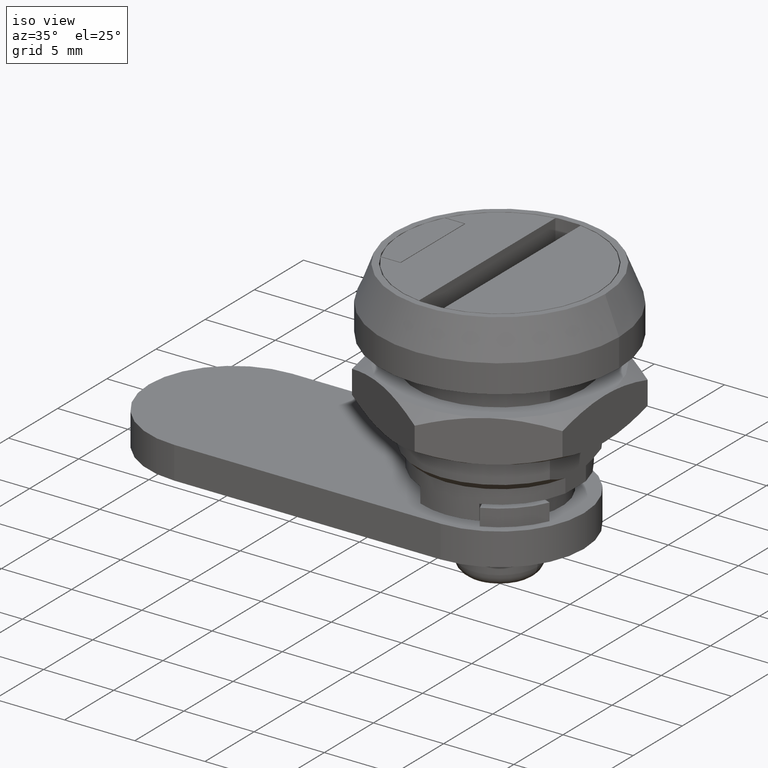
[diagram: clean part render]
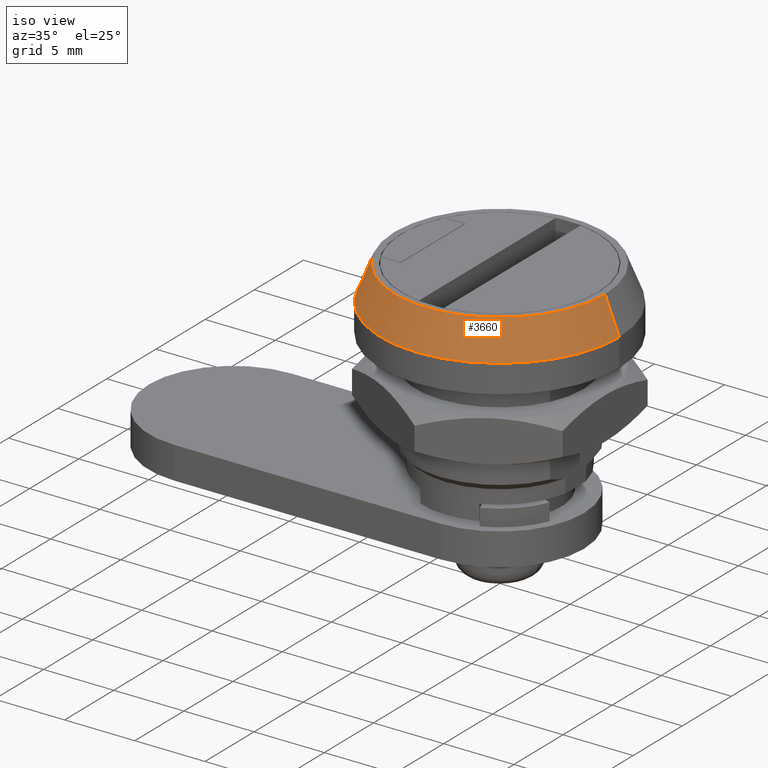
[diagram: same view with one face highlighted and labeled with its STEP entity id]
A machine part, iso view. The second image highlights one B-rep face of the part: STEP entity #3660.
In plain terms, the highlighted conical surface has half-angle 21.801 deg.
Its self-contained STEP definition (entity closure, byte-faithful):
#256 = CONICAL_SURFACE ( 'NONE', #846, 7.500000000000000000, 0.3805063771123651200 ) ;
#424 = EDGE_CURVE ( 'NONE', #448, #1908, #2085, .T. ) ;
#448 = VERTEX_POINT ( 'NONE', #2807 ) ;
#461 = CARTESIAN_POINT ( 'NONE',  ( 0.0000000000000000000, 0.0000000000000000000, 2.000000000000000000 ) ) ;
#504 = LINE ( 'NONE', #2101, #3983 ) ;
#551 = EDGE_CURVE ( 'NONE', #1908, #4091, #4098, .T. ) ;
#576 = EDGE_CURVE ( 'NONE', #1607, #4091, #504, .T. ) ;
#604 = DIRECTION ( 'NONE',  ( 1.000000000000000000, 0.0000000000000000000, 0.0000000000000000000 ) ) ;
#633 = DIRECTION ( 'NONE',  ( -0.3713906763541039400, 0.0000000000000000000, -0.9284766908852591900 ) ) ;
#734 = CARTESIAN_POINT ( 'NONE',  ( 0.0000000000000000000, 0.0000000000000000000, 4.500000000000000900 ) ) ;
#846 = AXIS2_PLACEMENT_3D ( 'NONE', #734, #2836, #1451 ) ;
#1088 = ORIENTED_EDGE ( 'NONE', *, *, #1370, .F. ) ;
#1166 = CARTESIAN_POINT ( 'NONE',  ( 7.500000000000000000, 4.592425496802574000E-016, 4.500000000000000900 ) ) ;
#1307 = CARTESIAN_POINT ( 'NONE',  ( 0.0000000000000000000, 0.0000000000000000000, 4.500000000000000900 ) ) ;
#1370 = EDGE_CURVE ( 'NONE', #448, #1607, #3136, .T. ) ;
#1396 = DIRECTION ( 'NONE',  ( 0.0000000000000000000, 0.0000000000000000000, 1.000000000000000000 ) ) ;
#1451 = DIRECTION ( 'NONE',  ( -1.000000000000000000, 0.0000000000000000000, 0.0000000000000000000 ) ) ;
#1607 = VERTEX_POINT ( 'NONE', #1166 ) ;
#1908 = VERTEX_POINT ( 'NONE', #3775 ) ;
#1942 = AXIS2_PLACEMENT_3D ( 'NONE', #1307, #4372, #604 ) ;
#2085 = LINE ( 'NONE', #4262, #3935 ) ;
#2101 = CARTESIAN_POINT ( 'NONE',  ( 7.500000000000000000, 9.184850993605147900E-016, 4.500000000000000900 ) ) ;
#2220 = FACE_OUTER_BOUND ( 'NONE', #3268, .T. ) ;
#2502 = AXIS2_PLACEMENT_3D ( 'NONE', #461, #1396, #4348 ) ;
#2807 = CARTESIAN_POINT ( 'NONE',  ( -7.500000000000000000, 4.592425496802574000E-016, 4.500000000000000900 ) ) ;
#2836 = DIRECTION ( 'NONE',  ( -0.0000000000000000000, -0.0000000000000000000, -1.000000000000000000 ) ) ;
#3100 = ORIENTED_EDGE ( 'NONE', *, *, #424, .T. ) ;
#3136 = CIRCLE ( 'NONE', #1942, 7.500000000000000000 ) ;
#3268 = EDGE_LOOP ( 'NONE', ( #4490, #1088, #3100, #3471 ) ) ;
#3471 = ORIENTED_EDGE ( 'NONE', *, *, #551, .T. ) ;
#3508 = DIRECTION ( 'NONE',  ( 0.3713906763541039400, 4.548224030302240200E-017, -0.9284766908852591900 ) ) ;
#3660 = ADVANCED_FACE ( 'NONE', ( #2220 ), #256, .T. ) ;
#3775 = CARTESIAN_POINT ( 'NONE',  ( -8.500000000000000000, 0.0000000000000000000, 2.000000000000000000 ) ) ;
#3935 = VECTOR ( 'NONE', #633, 1000.000000000000200 ) ;
#3983 = VECTOR ( 'NONE', #3508, 1000.000000000000200 ) ;
#4091 = VERTEX_POINT ( 'NONE', #4236 ) ;
#4098 = CIRCLE ( 'NONE', #2502, 8.500000000000000000 ) ;
#4236 = CARTESIAN_POINT ( 'NONE',  ( 8.500000000000000000, 1.040949779275250100E-015, 2.000000000000000000 ) ) ;
#4262 = CARTESIAN_POINT ( 'NONE',  ( -7.500000000000000000, 0.0000000000000000000, 4.500000000000000900 ) ) ;
#4348 = DIRECTION ( 'NONE',  ( -1.000000000000000000, 0.0000000000000000000, 0.0000000000000000000 ) ) ;
#4372 = DIRECTION ( 'NONE',  ( 0.0000000000000000000, 0.0000000000000000000, 1.000000000000000000 ) ) ;
#4490 = ORIENTED_EDGE ( 'NONE', *, *, #576, .F. ) ;